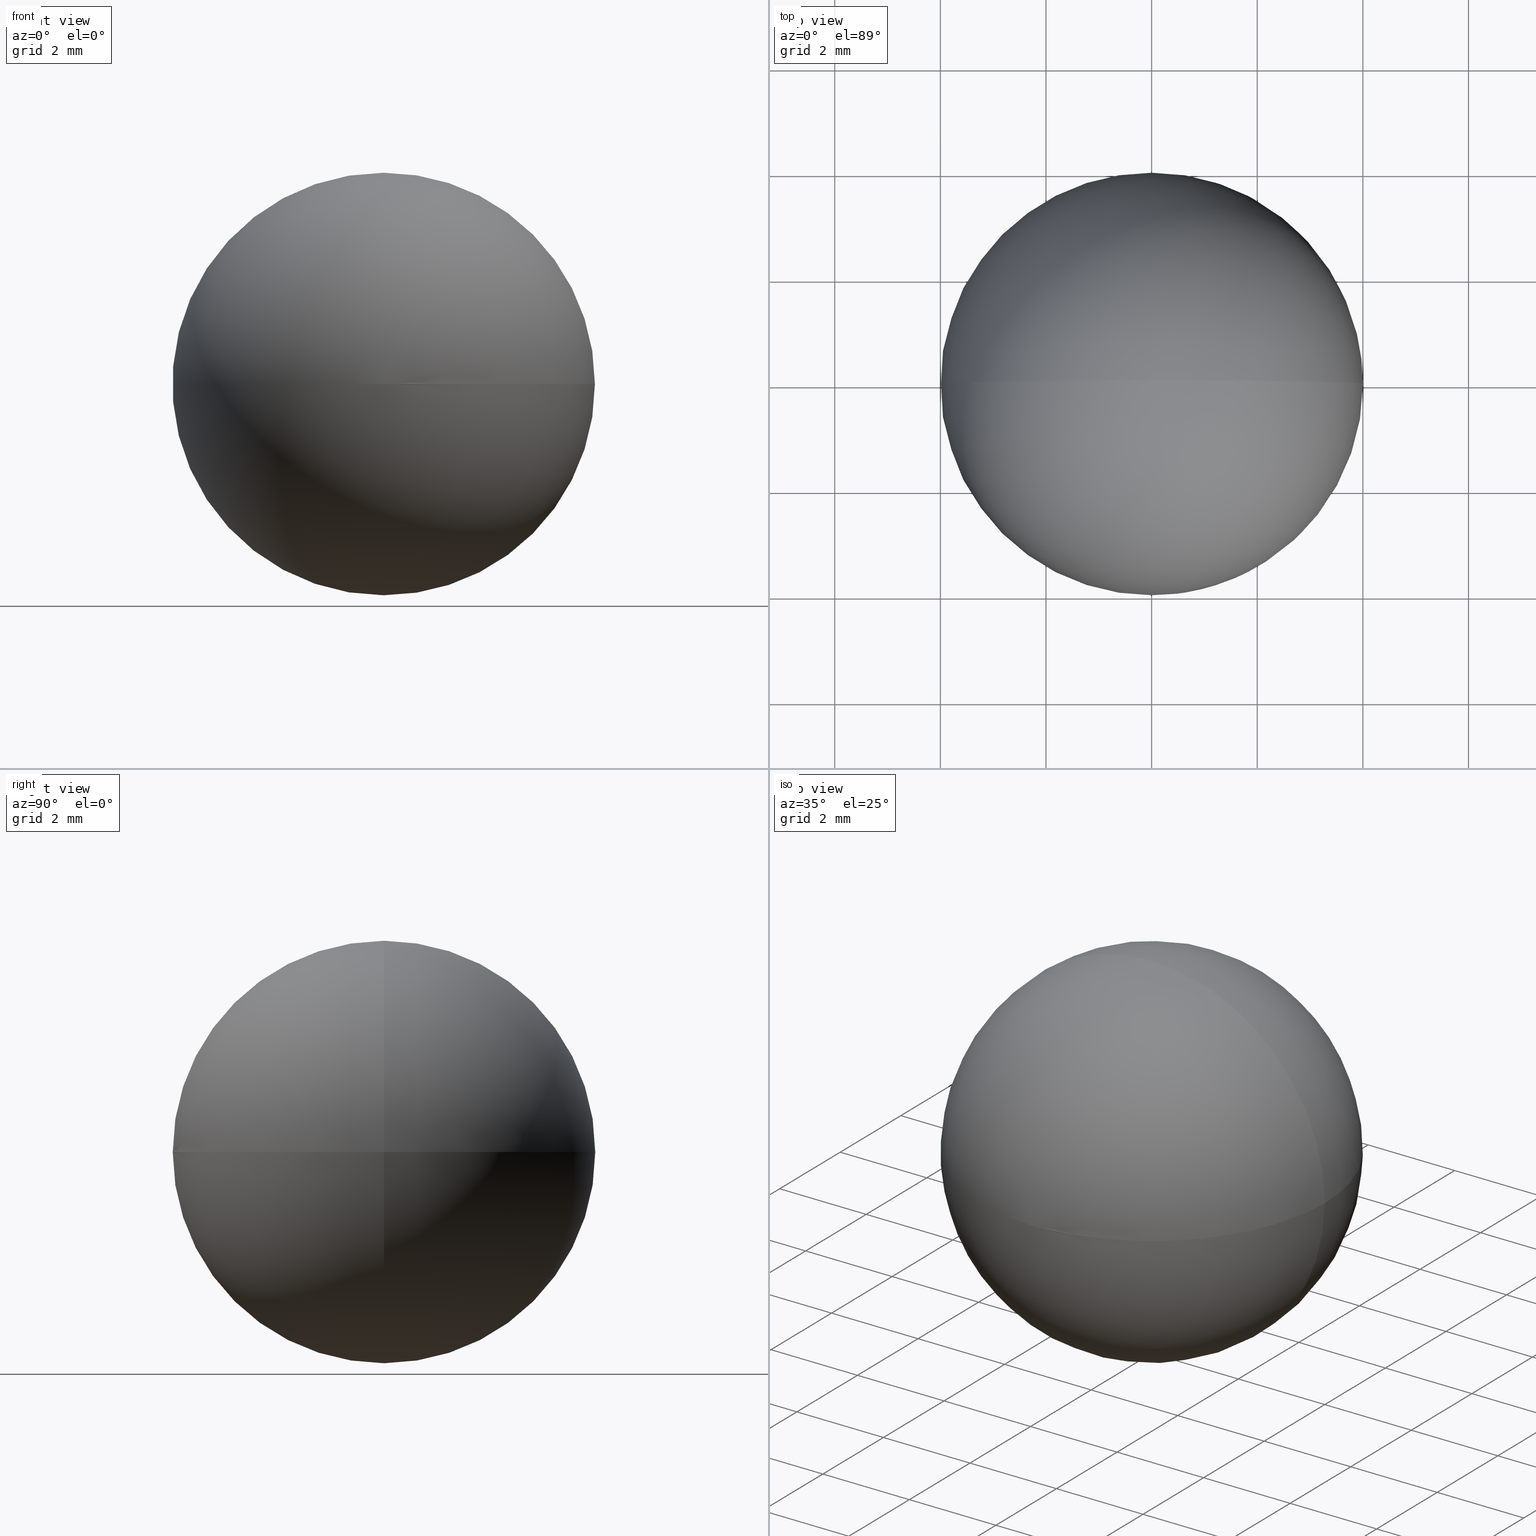
[diagram: canonical four-view strip — front | top / right | iso, engineering-drawing reading convention]
A machine part, canonical four-view strip (front | top / right | iso — engineering-drawing reading convention). The complete STEP part file that produces these views, byte-faithful:
ISO-10303-21;
HEADER;
FILE_DESCRIPTION (( 'STEP AP203' ),
    '1' );
FILE_NAME ('160007.STEP',
    '2019-06-05T05:51:12',
    ( '' ),
    ( '' ),
    'SwSTEP 2.0',
    'SolidWorks 2016',
    '' );
FILE_SCHEMA (( 'CONFIG_CONTROL_DESIGN' ));
ENDSEC;

DATA;
#1 = COORDINATED_UNIVERSAL_TIME_OFFSET ( 8, 0, .AHEAD. ) ;
#2 = DATE_AND_TIME ( #106, #128 ) ;
#3 = APPROVAL_PERSON_ORGANIZATION ( #152, #201, #108 ) ;
#4 = PERSON_AND_ORGANIZATION ( #159, #37 ) ;
#5 = APPROVAL_DATE_TIME ( #38, #144 ) ;
#6 = CARTESIAN_POINT ( 'NONE',  ( 0.0000000000000000000, 0.0000000000000000000, 0.0000000000000000000 ) ) ;
#7 = COORDINATED_UNIVERSAL_TIME_OFFSET ( 8, 0, .AHEAD. ) ;
#8 = PERSON_AND_ORGANIZATION ( #159, #37 ) ;
#9 = APPROVAL_ROLE ( '' ) ;
#10 = LOCAL_TIME ( 13, 51, 12.00000000000000000, #7 ) ;
#11 = APPROVAL_STATUS ( 'not_yet_approved' ) ;
#12 = PRODUCT_DEFINITION_SHAPE ( 'NONE', 'NONE',  #29 ) ;
#13 = CC_DESIGN_APPROVAL ( #201, ( #51 ) ) ;
#14 = COORDINATED_UNIVERSAL_TIME_OFFSET ( 8, 0, .AHEAD. ) ;
#15 = CC_DESIGN_PERSON_AND_ORGANIZATION_ASSIGNMENT ( #23, #173, ( #51 ) ) ;
#16 = DIRECTION ( 'NONE',  ( 1.224646799147353200E-016, -1.000000000000000000, 0.0000000000000000000 ) ) ;
#17 = CIRCLE ( 'NONE', #74, 4.000000000000000000 ) ;
#18 = ORIENTED_EDGE ( 'NONE', *, *, #28, .F. ) ;
#19 = PERSON_AND_ORGANIZATION ( #159, #37 ) ;
#20 = SHAPE_DEFINITION_REPRESENTATION ( #12, #40 ) ;
#21 = LOCAL_TIME ( 13, 51, 12.00000000000000000, #110 ) ;
#22 = SECURITY_CLASSIFICATION ( '', '', #138 ) ;
#23 = PERSON_AND_ORGANIZATION ( #159, #37 ) ;
#24 = APPLICATION_CONTEXT ( 'configuration controlled 3d designs of mechanical parts and assemblies' ) ;
#25 = DIRECTION ( 'NONE',  ( 1.000000000000000000, 0.0000000000000000000, 0.0000000000000000000 ) ) ;
#26 = CC_DESIGN_APPROVAL ( #92, ( #63 ) ) ;
#27 = VERTEX_POINT ( 'NONE', #117 ) ;
#28 = EDGE_CURVE ( 'NONE', #27, #122, #69, .T. ) ;
#29 = PRODUCT_DEFINITION ( 'δ֪', '', #124, #176 ) ;
#30 = PERSON_AND_ORGANIZATION ( #159, #37 ) ;
#31 = CC_DESIGN_PERSON_AND_ORGANIZATION_ASSIGNMENT ( #36, #105, ( #124 ) ) ;
#32 = LOCAL_TIME ( 13, 51, 12.00000000000000000, #88 ) ;
#33 = LOCAL_TIME ( 13, 51, 12.00000000000000000, #85 ) ;
#34 = DATE_TIME_ROLE ( 'creation_date' ) ;
#35 = CARTESIAN_POINT ( 'NONE',  ( 0.0000000000000000000, 0.0000000000000000000, 0.0000000000000000000 ) ) ;
#36 = PERSON_AND_ORGANIZATION ( #159, #37 ) ;
#37 = ORGANIZATION ( 'δָ��', 'δָ��', '' ) ;
#38 = DATE_AND_TIME ( #89, #131 ) ;
#39 = PRODUCT_RELATED_PRODUCT_CATEGORY ( 'detail', '', ( #194 ) ) ;
#40 = ADVANCED_BREP_SHAPE_REPRESENTATION ( '160007', ( #178, #139 ), #61 ) ;
#41 = CC_DESIGN_APPROVAL ( #101, ( #124 ) ) ;
#42 = PRODUCT ( '160007', '160007', '', ( #162 ) ) ;
#43 = DIRECTION ( 'NONE',  ( 1.000000000000000000, 0.0000000000000000000, 0.0000000000000000000 ) ) ;
#44 = APPROVAL_DATE_TIME ( #2, #92 ) ;
#45 = DIRECTION ( 'NONE',  ( 1.000000000000000000, 0.0000000000000000000, 0.0000000000000000000 ) ) ;
#46 = ORIENTED_EDGE ( 'NONE', *, *, #28, .T. ) ;
#47 = EDGE_CURVE ( 'NONE', #27, #122, #17, .T. ) ;
#48 = APPROVAL_PERSON_ORGANIZATION ( #87, #115, #56 ) ;
#49 = FACE_OUTER_BOUND ( 'NONE', #102, .T. ) ;
#50 = CC_DESIGN_APPROVAL ( #144, ( #29 ) ) ;
#51 = PRODUCT_DEFINITION_FORMATION_WITH_SPECIFIED_SOURCE ( '�κ�', '', #194, .NOT_KNOWN. ) ;
#52 = DATE_TIME_ROLE ( 'classification_date' ) ;
#53 = APPLICATION_PROTOCOL_DEFINITION ( 'international standard', 'config_control_design', 1994, #93 ) ;
#54 = DESIGN_CONTEXT ( 'detailed design', #93, 'design' ) ;
#55 = PERSON_AND_ORGANIZATION_ROLE ( 'creator' ) ;
#56 = APPROVAL_ROLE ( '' ) ;
#57 =( NAMED_UNIT ( * ) SI_UNIT ( $, .STERADIAN. ) SOLID_ANGLE_UNIT ( ) );
#58 = DATE_AND_TIME ( #142, #21 ) ;
#59 = CC_DESIGN_PERSON_AND_ORGANIZATION_ASSIGNMENT ( #167, #183, ( #124 ) ) ;
#60 = DATE_AND_TIME ( #80, #107 ) ;
#61 =( GEOMETRIC_REPRESENTATION_CONTEXT ( 3 ) GLOBAL_UNCERTAINTY_ASSIGNED_CONTEXT ( ( #126 ) ) GLOBAL_UNIT_ASSIGNED_CONTEXT ( ( #100, #163, #57 ) ) REPRESENTATION_CONTEXT ( 'NONE', 'WORKASPACE' ) );
#62 = DATE_AND_TIME ( #129, #32 ) ;
#63 = SECURITY_CLASSIFICATION ( '', '', #151 ) ;
#64 = PERSON_AND_ORGANIZATION ( #159, #37 ) ;
#65 = PRODUCT_DEFINITION ( 'δ֪', '', #51, #54 ) ;
#66 = CARTESIAN_POINT ( 'NONE',  ( 0.0000000000000000000, 0.0000000000000000000, 0.0000000000000000000 ) ) ;
#67 = CC_DESIGN_DATE_AND_TIME_ASSIGNMENT ( #160, #52, ( #22 ) ) ;
#68 = CC_DESIGN_PERSON_AND_ORGANIZATION_ASSIGNMENT ( #118, #55, ( #51 ) ) ;
#69 = CIRCLE ( 'NONE', #177, 4.000000000000000000 ) ;
#70 = COORDINATED_UNIVERSAL_TIME_OFFSET ( 8, 0, .AHEAD. ) ;
#71 = CALENDAR_DATE ( 2019, 5, 6 ) ;
#72 = COORDINATED_UNIVERSAL_TIME_OFFSET ( 8, 0, .AHEAD. ) ;
#73 = PERSON_AND_ORGANIZATION_ROLE ( 'creator' ) ;
#74 = AXIS2_PLACEMENT_3D ( 'NONE', #66, #199, #195 ) ;
#75 = PERSON_AND_ORGANIZATION_ROLE ( 'design_owner' ) ;
#76 = APPLICATION_CONTEXT ( 'configuration controlled 3d designs of mechanical parts and assemblies' ) ;
#77 = DIRECTION ( 'NONE',  ( 1.000000000000000000, 0.0000000000000000000, 0.0000000000000000000 ) ) ;
#78 = APPROVAL ( #137, 'δָ��' ) ;
#79 = CC_DESIGN_PERSON_AND_ORGANIZATION_ASSIGNMENT ( #171, #120, ( #29 ) ) ;
#80 = CALENDAR_DATE ( 2019, 5, 6 ) ;
#81 = CALENDAR_DATE ( 2019, 5, 6 ) ;
#82 = SPHERICAL_SURFACE ( 'NONE', #169, 4.000000000000000000 ) ;
#83 = ADVANCED_FACE ( 'NONE', ( #49 ), #98, .T. ) ;
#84 = PERSON_AND_ORGANIZATION_ROLE ( 'design_owner' ) ;
#85 = COORDINATED_UNIVERSAL_TIME_OFFSET ( 8, 0, .AHEAD. ) ;
#86 = APPROVAL_ROLE ( '' ) ;
#87 = PERSON_AND_ORGANIZATION ( #159, #37 ) ;
#88 = COORDINATED_UNIVERSAL_TIME_OFFSET ( 8, 0, .AHEAD. ) ;
#89 = CALENDAR_DATE ( 2019, 5, 6 ) ;
#90 = ORIENTED_EDGE ( 'NONE', *, *, #47, .T. ) ;
#91 = CC_DESIGN_APPROVAL ( #78, ( #65 ) ) ;
#92 = APPROVAL ( #186, 'δָ��' ) ;
#93 = APPLICATION_CONTEXT ( 'configuration controlled 3d designs of mechanical parts and assemblies' ) ;
#94 = DATE_TIME_ROLE ( 'classification_date' ) ;
#95 = APPLICATION_PROTOCOL_DEFINITION ( 'international standard', 'config_control_design', 1994, #76 ) ;
#96 = COORDINATED_UNIVERSAL_TIME_OFFSET ( 8, 0, .AHEAD. ) ;
#97 = CALENDAR_DATE ( 2019, 5, 6 ) ;
#98 = SPHERICAL_SURFACE ( 'NONE', #198, 4.000000000000000000 ) ;
#99 = PERSON_AND_ORGANIZATION_ROLE ( 'classification_officer' ) ;
#100 =( LENGTH_UNIT ( ) NAMED_UNIT ( * ) SI_UNIT ( .MILLI., .METRE. ) );
#101 = APPROVAL ( #11, 'δָ��' ) ;
#102 = EDGE_LOOP ( 'NONE', ( #18, #90 ) ) ;
#103 = CARTESIAN_POINT ( 'NONE',  ( 2.449293598294706400E-016, 0.0000000000000000000, -4.000000000000000000 ) ) ;
#104 = DATE_AND_TIME ( #71, #161 ) ;
#105 = PERSON_AND_ORGANIZATION_ROLE ( 'design_supplier' ) ;
#106 = CALENDAR_DATE ( 2019, 5, 6 ) ;
#107 = LOCAL_TIME ( 13, 51, 12.00000000000000000, #70 ) ;
#108 = APPROVAL_ROLE ( '' ) ;
#109 = MECHANICAL_CONTEXT ( 'NONE', #76, 'mechanical' ) ;
#110 = COORDINATED_UNIVERSAL_TIME_OFFSET ( 8, 0, .AHEAD. ) ;
#111 = CC_DESIGN_PERSON_AND_ORGANIZATION_ASSIGNMENT ( #193, #73, ( #65 ) ) ;
#112 = CC_DESIGN_PERSON_AND_ORGANIZATION_ASSIGNMENT ( #147, #99, ( #22 ) ) ;
#113 = APPROVAL_PERSON_ORGANIZATION ( #175, #144, #86 ) ;
#114 = APPROVAL_DATE_TIME ( #179, #115 ) ;
#115 = APPROVAL ( #125, 'δָ��' ) ;
#116 = APPLICATION_CONTEXT ( 'configuration controlled 3d designs of mechanical parts and assemblies' ) ;
#117 = CARTESIAN_POINT ( 'NONE',  ( 2.449293598294706400E-016, 0.0000000000000000000, 4.000000000000000000 ) ) ;
#118 = PERSON_AND_ORGANIZATION ( #159, #37 ) ;
#119 = DIRECTION ( 'NONE',  ( 0.0000000000000000000, -1.000000000000000000, -0.0000000000000000000 ) ) ;
#120 = PERSON_AND_ORGANIZATION_ROLE ( 'creator' ) ;
#121 = APPROVAL_DATE_TIME ( #62, #101 ) ;
#122 = VERTEX_POINT ( 'NONE', #103 ) ;
#123 = DATE_AND_TIME ( #164, #33 ) ;
#124 = PRODUCT_DEFINITION_FORMATION_WITH_SPECIFIED_SOURCE ( '�κ�', '', #42, .NOT_KNOWN. ) ;
#125 = APPROVAL_STATUS ( 'not_yet_approved' ) ;
#126 = UNCERTAINTY_MEASURE_WITH_UNIT (LENGTH_MEASURE( 1.000000000000000100E-005 ), #100, 'distance_accuracy_value', 'NONE');
#127 = CC_DESIGN_SECURITY_CLASSIFICATION ( #22, ( #124 ) ) ;
#128 = LOCAL_TIME ( 13, 51, 12.00000000000000000, #72 ) ;
#129 = CALENDAR_DATE ( 2019, 5, 6 ) ;
#130 = APPLICATION_PROTOCOL_DEFINITION ( 'international standard', 'config_control_design', 1994, #24 ) ;
#131 = LOCAL_TIME ( 13, 51, 12.00000000000000000, #96 ) ;
#132 = AXIS2_PLACEMENT_3D ( 'NONE', #156, #154, #77 ) ;
#133 = CARTESIAN_POINT ( 'NONE',  ( 0.0000000000000000000, 0.0000000000000000000, 0.0000000000000000000 ) ) ;
#134 = CC_DESIGN_APPROVAL ( #115, ( #22 ) ) ;
#135 = APPROVAL_STATUS ( 'not_yet_approved' ) ;
#136 = CC_DESIGN_DATE_AND_TIME_ASSIGNMENT ( #158, #94, ( #63 ) ) ;
#137 = APPROVAL_STATUS ( 'not_yet_approved' ) ;
#138 = SECURITY_CLASSIFICATION_LEVEL ( 'unclassified' ) ;
#139 = AXIS2_PLACEMENT_3D ( 'NONE', #35, #203, #25 ) ;
#140 = CC_DESIGN_PERSON_AND_ORGANIZATION_ASSIGNMENT ( #197, #84, ( #42 ) ) ;
#141 = LOCAL_TIME ( 13, 51, 12.00000000000000000, #14 ) ;
#142 = CALENDAR_DATE ( 2019, 5, 6 ) ;
#143 = COORDINATED_UNIVERSAL_TIME_OFFSET ( 8, 0, .AHEAD. ) ;
#144 = APPROVAL ( #135, 'δָ��' ) ;
#145 = CC_DESIGN_DATE_AND_TIME_ASSIGNMENT ( #58, #34, ( #65 ) ) ;
#146 = APPROVAL_PERSON_ORGANIZATION ( #19, #92, #9 ) ;
#147 = PERSON_AND_ORGANIZATION ( #159, #37 ) ;
#148 = APPROVAL_ROLE ( '' ) ;
#149 = PRODUCT_DEFINITION_SHAPE ( 'NONE', 'NONE',  #65 ) ;
#150 = CALENDAR_DATE ( 2019, 5, 6 ) ;
#151 = SECURITY_CLASSIFICATION_LEVEL ( 'unclassified' ) ;
#152 = PERSON_AND_ORGANIZATION ( #159, #37 ) ;
#153 = APPROVAL_STATUS ( 'not_yet_approved' ) ;
#154 = DIRECTION ( 'NONE',  ( 0.0000000000000000000, 0.0000000000000000000, 1.000000000000000000 ) ) ;
#155 = APPROVAL_DATE_TIME ( #104, #78 ) ;
#156 = CARTESIAN_POINT ( 'NONE',  ( 0.0000000000000000000, 0.0000000000000000000, 0.0000000000000000000 ) ) ;
#157 = CC_DESIGN_DATE_AND_TIME_ASSIGNMENT ( #123, #189, ( #29 ) ) ;
#158 = DATE_AND_TIME ( #150, #192 ) ;
#159 = PERSON ( 'δָ��', 'δָ��', 'δָ��', ('δָ��'), ('δָ��'), ('δָ��') ) ;
#160 = DATE_AND_TIME ( #81, #141 ) ;
#161 = LOCAL_TIME ( 13, 51, 12.00000000000000000, #1 ) ;
#162 = MECHANICAL_CONTEXT ( 'NONE', #24, 'mechanical' ) ;
#163 =( NAMED_UNIT ( * ) PLANE_ANGLE_UNIT ( ) SI_UNIT ( $, .RADIAN. ) );
#164 = CALENDAR_DATE ( 2019, 5, 6 ) ;
#165 = CLOSED_SHELL ( 'NONE', ( #200, #83 ) ) ;
#166 = APPLICATION_PROTOCOL_DEFINITION ( 'international standard', 'config_control_design', 1994, #116 ) ;
#167 = PERSON_AND_ORGANIZATION ( #159, #37 ) ;
#168 = APPROVAL_PERSON_ORGANIZATION ( #4, #78, #188 ) ;
#169 = AXIS2_PLACEMENT_3D ( 'NONE', #6, #119, #43 ) ;
#170 = CC_DESIGN_SECURITY_CLASSIFICATION ( #63, ( #51 ) ) ;
#171 = PERSON_AND_ORGANIZATION ( #159, #37 ) ;
#172 = PERSON_AND_ORGANIZATION_ROLE ( 'classification_officer' ) ;
#173 = PERSON_AND_ORGANIZATION_ROLE ( 'design_supplier' ) ;
#174 = CC_DESIGN_PERSON_AND_ORGANIZATION_ASSIGNMENT ( #8, #172, ( #63 ) ) ;
#175 = PERSON_AND_ORGANIZATION ( #159, #37 ) ;
#176 = DESIGN_CONTEXT ( 'detailed design', #116, 'design' ) ;
#177 = AXIS2_PLACEMENT_3D ( 'NONE', #133, #16, #182 ) ;
#178 = MANIFOLD_SOLID_BREP ( '��ת2', #165 ) ;
#179 = DATE_AND_TIME ( #97, #10 ) ;
#180 = PRODUCT_RELATED_PRODUCT_CATEGORY ( 'detail', '', ( #42 ) ) ;
#181 = CARTESIAN_POINT ( 'NONE',  ( 0.0000000000000000000, 0.0000000000000000000, 0.0000000000000000000 ) ) ;
#182 = DIRECTION ( 'NONE',  ( 1.000000000000000000, 1.224646799147353200E-016, 0.0000000000000000000 ) ) ;
#183 = PERSON_AND_ORGANIZATION_ROLE ( 'creator' ) ;
#184 = EDGE_LOOP ( 'NONE', ( #185, #46 ) ) ;
#185 = ORIENTED_EDGE ( 'NONE', *, *, #47, .F. ) ;
#186 = APPROVAL_STATUS ( 'not_yet_approved' ) ;
#187 = APPROVAL_DATE_TIME ( #60, #201 ) ;
#188 = APPROVAL_ROLE ( '' ) ;
#189 = DATE_TIME_ROLE ( 'creation_date' ) ;
#190 = FACE_OUTER_BOUND ( 'NONE', #184, .T. ) ;
#191 = CC_DESIGN_PERSON_AND_ORGANIZATION_ASSIGNMENT ( #64, #75, ( #194 ) ) ;
#192 = LOCAL_TIME ( 13, 51, 12.00000000000000000, #143 ) ;
#193 = PERSON_AND_ORGANIZATION ( #159, #37 ) ;
#194 = PRODUCT ( '160007', '160007', '', ( #109 ) ) ;
#195 = DIRECTION ( 'NONE',  ( 0.0000000000000000000, 0.0000000000000000000, 1.000000000000000000 ) ) ;
#196 = DIRECTION ( 'NONE',  ( 0.0000000000000000000, -1.000000000000000000, -0.0000000000000000000 ) ) ;
#197 = PERSON_AND_ORGANIZATION ( #159, #37 ) ;
#198 = AXIS2_PLACEMENT_3D ( 'NONE', #181, #196, #45 ) ;
#199 = DIRECTION ( 'NONE',  ( 0.0000000000000000000, 1.000000000000000000, -0.0000000000000000000 ) ) ;
#200 = ADVANCED_FACE ( 'NONE', ( #190 ), #82, .T. ) ;
#201 = APPROVAL ( #153, 'δָ��' ) ;
#202 = APPROVAL_PERSON_ORGANIZATION ( #30, #101, #148 ) ;
#203 = DIRECTION ( 'NONE',  ( 0.0000000000000000000, 0.0000000000000000000, 1.000000000000000000 ) ) ;
ENDSEC;
END-ISO-10303-21;
